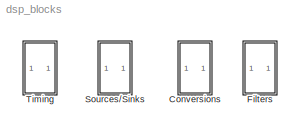
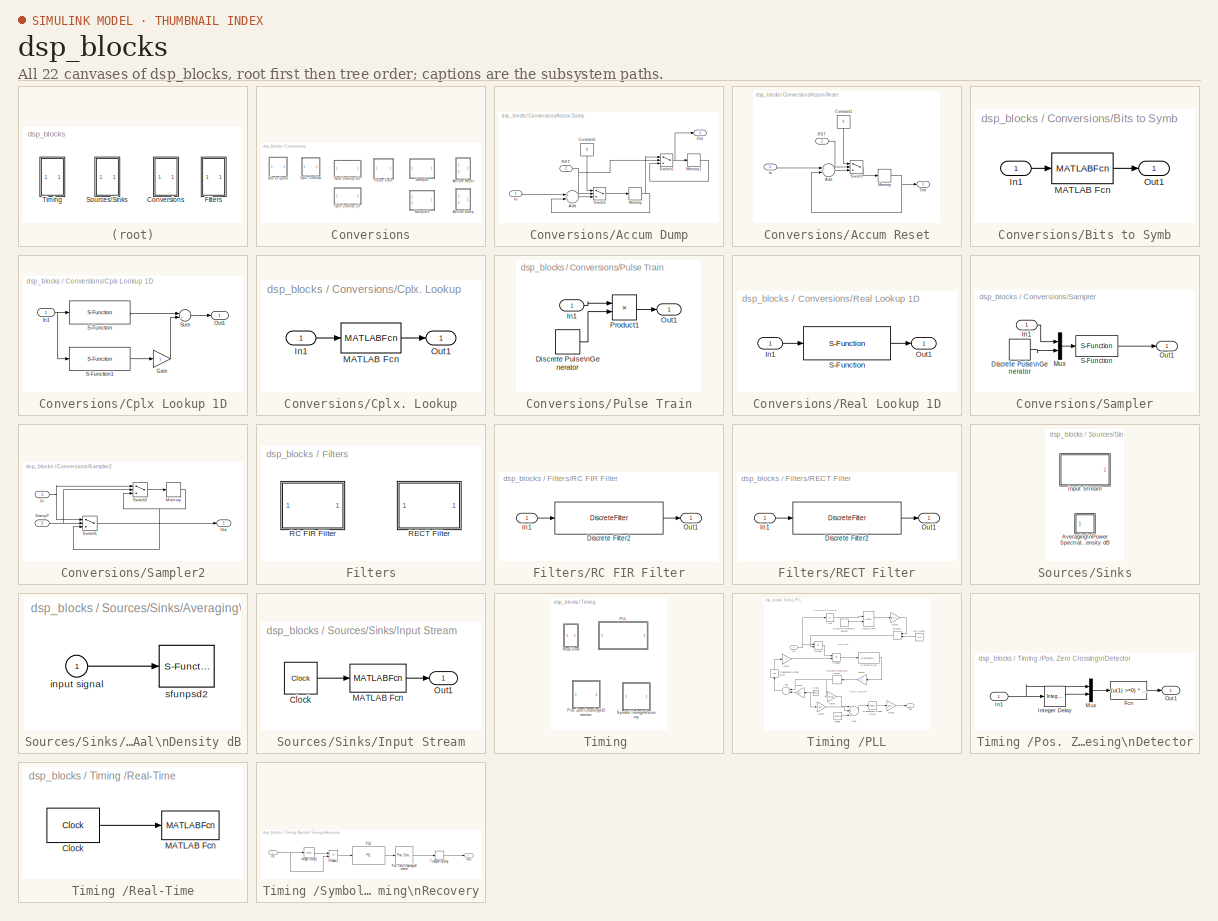
[diagram: thumbnail index - all 22 canvases of the model, root first then tree order]
MODEL dsp_blocks
KIND library
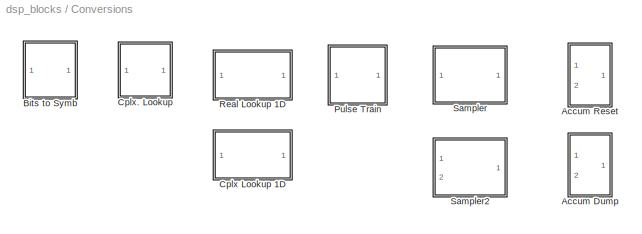
BLOCK [SubSystem] Conversions
  MaskHideContents = off
  MinAlgLoopOccurrences = off
  Ports = []
  RTWSystemCode = Auto
  TreatAsAtomicUnit = off
BLOCK [SubSystem] Conversions/Accum Dump
  MaskDescription = Accumulate and dump operation.
  MaskEnableString = on
  MaskHideContents = off
  MaskIconFrame = on
  MaskIconOpaque = on
  MaskIconRotate = none
  MaskIconUnits = autoscale
  MaskPromptString = Initial Condition
  MaskStyleString = edit
  MaskToolTipString = on
  MaskTunableValueString = on
  MaskValueString = 0
  MaskVariables = val0=@1;
  MaskVisibilityString = on
  MinAlgLoopOccurrences = off
  Ports = [2, 1]
  RTWSystemCode = Auto
  TreatAsAtomicUnit = off
BLOCK [Sum] Conversions/Accum Dump/Add
  InputSameDT = off
  OutDataTypeMode = Inherit via internal rule
  OutScaling = 2^-10
  Ports = [2, 1]
  SaturateOnIntegerOverflow = off
BLOCK [Constant] Conversions/Accum Dump/Constant1
  Value = 0
BLOCK [Inport] Conversions/Accum Dump/In
  IconDisplay = Port number
BLOCK [Memory] Conversions/Accum Dump/Memory
  X0 = val0
BLOCK [Memory] Conversions/Accum Dump/Memory1
  X0 = val0
BLOCK [Outport] Conversions/Accum Dump/Out
  BusOutputAsStruct = off
  IconDisplay = Port number
BLOCK [Inport] Conversions/Accum Dump/RST
  IconDisplay = Port number
  Port = 2
BLOCK [Switch] Conversions/Accum Dump/Switch
  InputSameDT = off
  SaturateOnIntegerOverflow = off
  Threshold = 0.5
BLOCK [Switch] Conversions/Accum Dump/Switch1
  InputSameDT = off
  SaturateOnIntegerOverflow = off
  Threshold = 0.5
BLOCK [SubSystem] Conversions/Accum Reset
  MaskDescription = Accumulator that can be reset.
  MaskHideContents = off
  MaskIconFrame = on
  MaskIconOpaque = on
  MaskIconRotate = none
  MaskIconUnits = autoscale
  MinAlgLoopOccurrences = off
  Ports = [2, 1]
  RTWSystemCode = Auto
  TreatAsAtomicUnit = off
BLOCK [Sum] Conversions/Accum Reset/Add
  InputSameDT = off
  OutDataTypeMode = Inherit via internal rule
  OutScaling = 2^-10
  Ports = [2, 1]
  SaturateOnIntegerOverflow = off
BLOCK [Constant] Conversions/Accum Reset/Constant1
  Value = 0
BLOCK [Inport] Conversions/Accum Reset/In
  IconDisplay = Port number
BLOCK [Memory] Conversions/Accum Reset/Memory
BLOCK [Outport] Conversions/Accum Reset/Out
  BusOutputAsStruct = off
  IconDisplay = Port number
BLOCK [Inport] Conversions/Accum Reset/RST
  IconDisplay = Port number
  Port = 2
BLOCK [Switch] Conversions/Accum Reset/Switch
  InputSameDT = off
  SaturateOnIntegerOverflow = off
  Threshold = 0.5
BLOCK [SubSystem] Conversions/Bits to Symb
  MaskDescription = Converts bits to symbols.
  MaskHideContents = off
  MaskIconFrame = on
  MaskIconOpaque = on
  MaskIconRotate = none
  MaskIconUnits = autoscale
  MinAlgLoopOccurrences = off
  Ports = [1, 1]
  RTWSystemCode = Auto
  TreatAsAtomicUnit = off
BLOCK [Inport] Conversions/Bits to Symb/In1
  IconDisplay = Port number
BLOCK [MATLABFcn] Conversions/Bits to Symb/MATLAB Fcn
  MATLABFcn = bits_to_symb_do(u)
  OutputDimensions = 1
BLOCK [Outport] Conversions/Bits to Symb/Out1
  BusOutputAsStruct = off
  IconDisplay = Port number
BLOCK [SubSystem] Conversions/Cplx Lookup 1D
  MaskEnableString = on
  MaskHideContents = off
  MaskIconFrame = on
  MaskIconOpaque = on
  MaskIconRotate = none
  MaskIconUnits = autoscale
  MaskInitialization = XData = [0:length(table)-1]; YDataRe = real(table); YDataIm = imag(table); XDataEvenlySpacing=1;
  MaskPromptString = Table
  MaskStyleString = edit
  MaskToolTipString = on
  MaskTunableValueString = on
  MaskValueString = [j -j]
  MaskVariables = table=@1;
  MaskVisibilityString = on
  MinAlgLoopOccurrences = off
  Ports = [1, 1]
  RTWSystemCode = Auto
  TreatAsAtomicUnit = off
BLOCK [Gain] Conversions/Cplx Lookup 1D/Gain
  Gain = j
BLOCK [Inport] Conversions/Cplx Lookup 1D/In1
  IconDisplay = Port number
BLOCK [Outport] Conversions/Cplx Lookup 1D/Out1
  BusOutputAsStruct = off
  IconDisplay = Port number
BLOCK [S-Function] Conversions/Cplx Lookup 1D/S-Function
  FunctionName = sfun_directlook
  Parameters = XData, YDataRe, XDataEvenlySpacing
  Ports = [1, 1]
BLOCK [S-Function] Conversions/Cplx Lookup 1D/S-Function1
  FunctionName = sfun_directlook
  Parameters = XData, YDataIm, XDataEvenlySpacing
  Ports = [1, 1]
BLOCK [Sum] Conversions/Cplx Lookup 1D/Sum
  IconShape = round
  Inputs = |++
  Ports = [2, 1]
BLOCK [SubSystem] Conversions/Cplx. Lookup
  MaskDescription = Does a discrete lookup table.
  MaskEnableString = on
  MaskHelp = The table variable has one entry per possible input index.  Note that it is defined to be zero indexed (0 maps to the first table entry, 1 to the second, etc.).\n
  MaskHideContents = off
  MaskIconFrame = on
  MaskIconOpaque = on
  MaskIconRotate = none
  MaskIconUnits = autoscale
  MaskPromptString = Table
  MaskStyleString = edit
  MaskToolTipString = on
  MaskTunableValueString = on
  MaskValueString = [-1 1]
  MaskVariables = table=@1;
  MaskVisibilityString = on
  MinAlgLoopOccurrences = off
  Ports = [1, 1]
  RTWSystemCode = Auto
  TreatAsAtomicUnit = off
BLOCK [Inport] Conversions/Cplx. Lookup/In1
  IconDisplay = Port number
BLOCK [MATLABFcn] Conversions/Cplx. Lookup/MATLAB Fcn
  MATLABFcn = lookup_do(u, table)
  OutputSignalType = complex
BLOCK [Outport] Conversions/Cplx. Lookup/Out1
  BusOutputAsStruct = off
  IconDisplay = Port number
BLOCK [SubSystem] Conversions/Pulse Train
  MaskDescription = Samples the incoming signal and makes a pulse train.
  MaskDisplay = disp(sprintf('T=%d', period));
  MaskEnableString = on
  MaskHideContents = off
  MaskIconFrame = on
  MaskIconOpaque = on
  MaskIconRotate = none
  MaskIconUnits = autoscale
  MaskPromptString = Period (samples)
  MaskStyleString = edit
  MaskToolTipString = on
  MaskTunableValueString = on
  MaskValueString = 10
  MaskVariables = period=@1;
  MaskVisibilityString = on
  MinAlgLoopOccurrences = off
  Ports = [1, 1]
  RTWSystemCode = Auto
  TreatAsAtomicUnit = off
BLOCK [DiscretePulseGenerator] Conversions/Pulse Train/Discrete Pulse\nGenerator
  Period = period
  Ports = [0, 1]
BLOCK [Inport] Conversions/Pulse Train/In1
  IconDisplay = Port number
BLOCK [Outport] Conversions/Pulse Train/Out1
  BusOutputAsStruct = off
  IconDisplay = Port number
BLOCK [Product] Conversions/Pulse Train/Product1
  InputSameDT = off
  Ports = [2, 1]
BLOCK [SubSystem] Conversions/Real Lookup 1D
  MaskEnableString = on
  MaskHideContents = off
  MaskIconFrame = on
  MaskIconOpaque = on
  MaskIconRotate = none
  MaskIconUnits = autoscale
  MaskInitialization = XData = [0:length(table)-1]; YData = table; XDataEvenlySpacing=1;
  MaskPromptString = Table
  MaskStyleString = edit
  MaskToolTipString = on
  MaskTunableValueString = on
  MaskValueString = [-1 -0.5 0.5 1]
  MaskVariables = table=@1;
  MaskVisibilityString = on
  MinAlgLoopOccurrences = off
  Ports = [1, 1]
  RTWSystemCode = Auto
  TreatAsAtomicUnit = off
BLOCK [Inport] Conversions/Real Lookup 1D/In1
  IconDisplay = Port number
BLOCK [Outport] Conversions/Real Lookup 1D/Out1
  BusOutputAsStruct = off
  IconDisplay = Port number
BLOCK [S-Function] Conversions/Real Lookup 1D/S-Function
  FunctionName = sfun_directlook
  Parameters = XData, YData, XDataEvenlySpacing
  Ports = [1, 1]
BLOCK [SubSystem] Conversions/Sampler
  MaskCallbackString = |
  MaskDisplay = disp(sprintf('del=%d, T=%d', offset, samp_period));
  MaskEnableString = on,on
  MaskHideContents = off
  MaskIconFrame = on
  MaskIconOpaque = on
  MaskIconRotate = none
  MaskIconUnits = autoscale
  MaskPromptString = Offset (samples)|Sample Period
  MaskStyleString = edit,edit
  MaskTabNameString = ,
  MaskToolTipString = on,on
  MaskTunableValueString = on,on
  MaskValueString = 64|10
  MaskVarAliasString = ,
  MaskVariables = offset=@1;samp_period=@2;
  MaskVisibilityString = on,on
  MinAlgLoopOccurrences = off
  Ports = [1, 1]
  RTWSystemCode = Auto
  TreatAsAtomicUnit = off
BLOCK [DiscretePulseGenerator] Conversions/Sampler/Discrete Pulse\nGenerator
  Period = samp_period
  PhaseDelay = offset
  Ports = [0, 1]
BLOCK [Inport] Conversions/Sampler/In1
  IconDisplay = Port number
BLOCK [Mux] Conversions/Sampler/Mux
  DisplayOption = bar
  Inputs = 2
  Ports = [2, 1]
BLOCK [Outport] Conversions/Sampler/Out1
  BusOutputAsStruct = off
  IconDisplay = Port number
BLOCK [S-Function] Conversions/Sampler/S-Function
  FunctionName = sampler1
  Ports = [1, 1]
BLOCK [SubSystem] Conversions/Sampler2
  MaskDescription = Sample and hold with external gate signal.
  MaskHideContents = off
  MaskIconFrame = on
  MaskIconOpaque = on
  MaskIconRotate = none
  MaskIconUnits = autoscale
  MinAlgLoopOccurrences = off
  Ports = [2, 1]
  RTWSystemCode = Auto
  TreatAsAtomicUnit = off
BLOCK [Inport] Conversions/Sampler2/In
  IconDisplay = Port number
BLOCK [Memory] Conversions/Sampler2/Memory
BLOCK [Outport] Conversions/Sampler2/Out
  BusOutputAsStruct = off
  IconDisplay = Port number
BLOCK [Inport] Conversions/Sampler2/Samp?
  IconDisplay = Port number
  Port = 2
BLOCK [Switch] Conversions/Sampler2/Switch1
  InputSameDT = off
  SaturateOnIntegerOverflow = off
  Threshold = 0.5
BLOCK [Switch] Conversions/Sampler2/Switch2
  InputSameDT = off
  SaturateOnIntegerOverflow = off
  Threshold = 0.5
BLOCK [SubSystem] Filters
  MaskHideContents = off
  MinAlgLoopOccurrences = off
  Ports = []
  RTWSystemCode = Auto
  TreatAsAtomicUnit = off
BLOCK [SubSystem] Filters/RC FIR Filter
  MaskCallbackString = ||||
  MaskDisplay = plot(f, abs(Ha));
  MaskEnableString = on,on,on,on,on
  MaskHideContents = off
  MaskIconFrame = on
  MaskIconOpaque = on
  MaskIconRotate = none
  MaskIconUnits = autoscale
  MaskInitialization = symb_rate = 1/period; p.fs = symb_rate; p.beta = beta; p.root = root; [h f Ha Hi win] = win_method('rc_filt', p, 1.5*(1+beta)*symb_rate, 1, filt_len, win_type); h = h';
  MaskPromptString = Symbol Period|Roll Off (beta)|Root Filter?|Filter Length (taps)|Hamming Window?
  MaskStyleString = edit,edit,checkbox,edit,checkbox
  MaskTabNameString = ,,,,
  MaskToolTipString = on,on,on,on,on
  MaskTunableValueString = on,on,on,on,on
  MaskValueString = 10|0.5|off|128|off
  MaskVarAliasString = ,,,,
  MaskVariables = period=@1;beta=@2;root=@3;filt_len=@4;win_type=@5;
  MaskVisibilityString = on,on,on,on,on
  MinAlgLoopOccurrences = off
  Ports = [1, 1]
  RTWSystemCode = Auto
  TreatAsAtomicUnit = off
BLOCK [DiscreteFilter] Filters/RC FIR Filter/Discrete Filter2
  Denominator = [1]
  Numerator = h
BLOCK [Inport] Filters/RC FIR Filter/In1
  IconDisplay = Port number
BLOCK [Outport] Filters/RC FIR Filter/Out1
  BusOutputAsStruct = off
  IconDisplay = Port number
BLOCK [SubSystem] Filters/RECT Filter
  AncestorBlock = dsp_blocks/Filters/RC FIR Filter
  MaskCallbackString = ||
  MaskDisplay = plot(f, abs(Ha));
  MaskEnableString = on,on,on
  MaskHideContents = off
  MaskIconFrame = on
  MaskIconOpaque = on
  MaskIconRotate = none
  MaskIconUnits = autoscale
  MaskInitialization = p.x1 = f0; p.x2 = f0; p.x3 = f1; p.x4 = f1; [h f Ha Hi win] = win_method('pw_lin', p, 0.5, 1, filt_len, 1); h = h';
  MaskPromptString = Low Cutoff (0=LPF)|Hi Cutoff|Filter Length (taps)
  MaskStyleString = edit,edit,edit
  MaskTabNameString = ,,
  MaskToolTipString = on,on,on
  MaskTunableValueString = on,on,on
  MaskValueString = 0.1|0.2|64
  MaskVarAliasString = ,,
  MaskVariables = f0=@1;f1=@2;filt_len=@3;
  MaskVisibilityString = on,on,on
  MinAlgLoopOccurrences = off
  Ports = [1, 1]
  RTWSystemCode = Auto
  TreatAsAtomicUnit = off
BLOCK [DiscreteFilter] Filters/RECT Filter/Discrete Filter2
  Denominator = [1]
  Numerator = h
BLOCK [Inport] Filters/RECT Filter/In1
  IconDisplay = Port number
BLOCK [Outport] Filters/RECT Filter/Out1
  BusOutputAsStruct = off
  IconDisplay = Port number
BLOCK [SubSystem] Sources//Sinks
  MaskHideContents = off
  MinAlgLoopOccurrences = off
  Ports = []
  RTWSystemCode = Auto
  TreatAsAtomicUnit = off
BLOCK [SubSystem] Sources//Sinks/Averaging\nPower Spectral\nDensity dB
  CopyFcn = sfunpsd2([],[],[],'CopyBlock')
  DeleteFcn = sfunpsd2([],[],[],'DeleteBlock')
  LoadFcn = sfunpsd2([],[],[],'LoadBlock')
  MaskCallbackString = ||||
  MaskDescription = Spectrum analyzer using graph window.
  MaskDisplay = plot(0,0,100,100,[11,92,92,11,11],[90,90,40,40,90],[82,76,65,57,51,44,35,30,25,20],[65,62,59,63,66,66,67,70,55,50])
  MaskEnableString = on,on,on,on,on
  MaskHelp = This block when hooked to the output of a system displays the frequency content of the buffer in the graph window. For more see the M-file sfunpsd.
  MaskHideContents = off
  MaskIconFrame = on
  MaskIconOpaque = on
  MaskIconRotate = none
  MaskIconUnits = autoscale
  MaskInitialization = ts=sampleT(1); if length(sampleT) > 1, offset = sampleT(2);, else, offset = 0; end
  MaskPromptString = Length of buffer:|Number of points for fft:|Plot after how many points:|Sample time:|dB Range:
  MaskSelfModifiable = on
  MaskStyleString = edit,edit,edit,edit,edit
  MaskTabNameString = ,,,,
  MaskToolTipString = on,on,on,on,on
  MaskTunableValueString = on,on,on,on,on
  MaskType = Spectrum Analyzer
  MaskValueString = 128|512|64|1|20
  MaskVarAliasString = ,,,,
  MaskVariables = npts=@1;fftpts=@2;HowOften=@3;sampleT=@4;db_range=@5;
  MaskVisibilityString = on,on,on,on,on
  MinAlgLoopOccurrences = off
  NameChangeFcn = sfunpsd2([],[],[],'NameChange')
  Ports = [1]
  RTWSystemCode = Auto
  StartFcn = sfunpsd2([],[],[],'Start')
  TreatAsAtomicUnit = off
BLOCK [Inport] Sources//Sinks/Averaging\nPower Spectral\nDensity dB/input signal
  IconDisplay = Port number
BLOCK [S-Function] Sources//Sinks/Averaging\nPower Spectral\nDensity dB/sfunpsd2
  CopyFcn = sfunpsd2([],[],[],'CopyBlock')
  DeleteFcn = sfunpsd2([],[],[],'DeleteBlock')
  FunctionName = sfunpsd2
  LoadFcn = sfunpsd2([],[],[],'LoadBlock')
  NameChangeFcn = sfunpsd2([],[],[],'NameChange')
  Parameters = fftpts,npts,HowOften,offset,ts,1,db_range
  Ports = [1]
  StartFcn = sfunpsd2([],[],[],'Start')
BLOCK [SubSystem] Sources//Sinks/Input Stream
  MaskCallbackString = ||
  MaskDescription = Input Stream: Reads binary data from an input file.  Outputs a new value once per period.  Width allows you to multiplex output.
  MaskDisplay = disp(sprintf('file=%s\\nT=%g w=%d', fname, period, width))
  MaskEnableString = on,on,on
  MaskHelp = The function loads the binary data from file fname, which should have a single vector called \"data\".  The output of the block is updated once every T=width*period.
  MaskHideContents = off
  MaskIconFrame = on
  MaskIconOpaque = on
  MaskIconRotate = none
  MaskIconUnits = autoscale
  MaskInitialization = load(fname); N = floor(length(data)/width); data = reshape(data(1:N*width),width,N);
  MaskPromptString = Period|Width|Data Filename
  MaskStyleString = edit,edit,edit
  MaskTabNameString = ,,
  MaskToolTipString = on,on,on
  MaskTunableValueString = on,on,on
  MaskValueString = 10|1|data.mat
  MaskVarAliasString = ,,
  MaskVariables = period=@1;width=@2;fname=&3;
  MaskVisibilityString = on,on,on
  MinAlgLoopOccurrences = off
  Ports = [0, 1]
  RTWSystemCode = Auto
  TreatAsAtomicUnit = off
BLOCK [Clock] Sources//Sinks/Input Stream/Clock
  Decimation = 1
  DisplayTime = on
BLOCK [MATLABFcn] Sources//Sinks/Input Stream/MATLAB Fcn
  MATLABFcn = input_stream_sample(u, data, period, width)
  Output1D = off
  OutputDimensions = width
BLOCK [Outport] Sources//Sinks/Input Stream/Out1
  BusOutputAsStruct = off
  IconDisplay = Port number
BLOCK [SubSystem] Timing 
  MaskHideContents = off
  MinAlgLoopOccurrences = off
  Ports = []
  RTWSystemCode = Auto
  TreatAsAtomicUnit = off
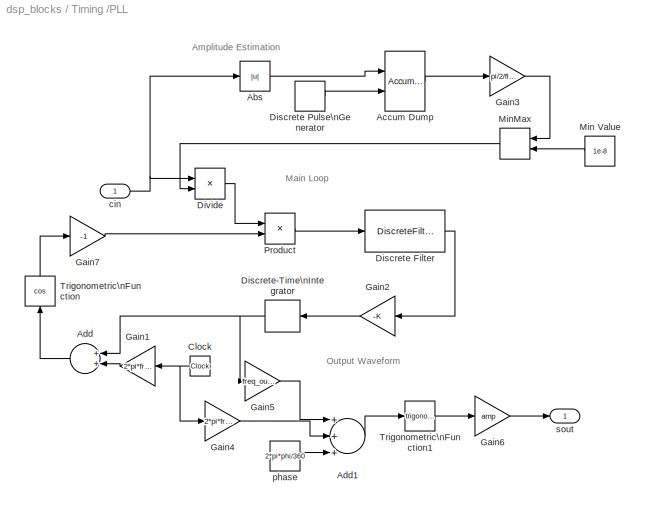
BLOCK [SubSystem] Timing /PLL
  MaskCallbackString = ||||||
  MaskDescription = Implements a phase locked loop (PLL).
  MaskDisplay = disp(sprintf('fin=%g fout=%g\\nxi=%g Tl=%g\\nphi=%g  amp=%g',freq,freq_out,xi,T,phi,amp));
  MaskEnableString = on,on,on,on,on,on,on
  MaskHideContents = off
  MaskIconFrame = on
  MaskIconOpaque = on
  MaskIconRotate = none
  MaskIconUnits = autoscale
  MaskInitialization = [a, b, tau1, tau2, Kout] = loop_filter1(T, xi, K);
  MaskPromptString = Input Frequency|Output Frequency|Output Phase|Output Amplitude|Damping Factor|Loop Gain|Loop Time Constant (samples)
  MaskStyleString = edit,edit,edit,edit,edit,edit,edit
  MaskTabNameString = ,,,,,,
  MaskToolTipString = on,on,on,on,on,on,on
  MaskTunableValueString = on,on,on,on,on,on,on
  MaskValueString = 0.1|0.1|0|1|1|2|200
  MaskVarAliasString = ,,,,,,
  MaskVariables = freq=@1;freq_out=@2;phi=@3;amp=@4;xi=@5;K=@6;T=@7;
  MaskVisibilityString = on,on,on,on,on,on,on
  MinAlgLoopOccurrences = off
  Ports = [1, 1]
  RTWSystemCode = Auto
  TreatAsAtomicUnit = off
BLOCK [Abs] Timing /PLL/Abs
  SaturateOnIntegerOverflow = off
BLOCK [Reference] Timing /PLL/Accum Dump  REF=dsp_blocks/Conversions/Accum Dump
  Ports = [2, 1]
  ShowPortLabels = on
  SourceBlock = dsp_blocks/Conversions/Accum Dump
  SourceType = Unknown
  val0 = 2/pi*floor(T)
BLOCK [Sum] Timing /PLL/Add
  InputSameDT = off
  OutDataTypeMode = Inherit via internal rule
  OutScaling = 2^-10
  Ports = [2, 1]
  SaturateOnIntegerOverflow = off
BLOCK [Sum] Timing /PLL/Add1
  InputSameDT = off
  Inputs = +++
  OutDataTypeMode = Inherit via internal rule
  OutScaling = 2^-10
  Ports = [3, 1]
  SaturateOnIntegerOverflow = off
BLOCK [Clock] Timing /PLL/Clock
  Decimation = 1
BLOCK [DiscreteFilter] Timing /PLL/Discrete Filter
  Denominator = [1 -a(1)]
  Numerator = [b(1) b(2)]
BLOCK [DiscretePulseGenerator] Timing /PLL/Discrete Pulse\nGenerator
  Period = floor(T)
  Ports = [0, 1]
BLOCK [DiscreteIntegrator] Timing /PLL/Discrete-Time\nIntegrator
  ExternalReset = none
  ICPrevOutput = DiscIntNeverNeededParam
  ICPrevScaledInput = DiscIntNeverNeededParam
  IgnoreLimit = off
  InitialConditionSource = internal
  IntegratorMethod = Integration: Forward Euler
  Ports = [1, 1]
  gainval = 1
BLOCK [Product] Timing /PLL/Divide
  InputSameDT = off
  Inputs = */
  OutDataTypeMode = Inherit via internal rule
  OutScaling = 2^-10
  Ports = [2, 1]
  RndMeth = Floor
  SaturateOnIntegerOverflow = off
BLOCK [Gain] Timing /PLL/Gain1
  Gain = 2*pi*freq
  OutDataTypeMode = Inherit via internal rule
  ParameterDataTypeMode = Inherit via internal rule
  SaturateOnIntegerOverflow = off
BLOCK [Gain] Timing /PLL/Gain2
  Gain = -K
  OutDataTypeMode = Inherit via internal rule
  ParameterDataTypeMode = Inherit via internal rule
  SaturateOnIntegerOverflow = off
BLOCK [Gain] Timing /PLL/Gain3
  Gain = pi/2/floor(T)
  OutDataTypeMode = Inherit via internal rule
  ParameterDataTypeMode = Inherit via internal rule
  SaturateOnIntegerOverflow = off
BLOCK [Gain] Timing /PLL/Gain4
  Gain = 2*pi*freq_out
  OutDataTypeMode = Inherit via internal rule
  ParameterDataTypeMode = Inherit via internal rule
  SaturateOnIntegerOverflow = off
BLOCK [Gain] Timing /PLL/Gain5
  Gain = freq_out/freq
  OutDataTypeMode = Inherit via internal rule
  ParameterDataTypeMode = Inherit via internal rule
  SaturateOnIntegerOverflow = off
BLOCK [Gain] Timing /PLL/Gain6
  Gain = amp
  OutDataTypeMode = Inherit via internal rule
  ParameterDataTypeMode = Inherit via internal rule
  SaturateOnIntegerOverflow = off
BLOCK [Gain] Timing /PLL/Gain7
  Gain = -1
  OutDataTypeMode = Inherit via internal rule
  ParameterDataTypeMode = Inherit via internal rule
  SaturateOnIntegerOverflow = off
BLOCK [Constant] Timing /PLL/Min Value
  Value = 1e-8
BLOCK [MinMax] Timing /PLL/MinMax
  Function = max
  InputSameDT = off
  Inputs = 2
  Ports = [2, 1]
  SaturateOnIntegerOverflow = off
BLOCK [Product] Timing /PLL/Product
  InputSameDT = off
  OutDataTypeMode = Inherit via internal rule
  Ports = [2, 1]
  SaturateOnIntegerOverflow = off
BLOCK [Trigonometry] Timing /PLL/Trigonometric\nFunction
  Operator = cos
  Ports = [1, 1]
BLOCK [Trigonometry] Timing /PLL/Trigonometric\nFunction1
  Ports = [1, 1]
BLOCK [Inport] Timing /PLL/cin
  IconDisplay = Port number
BLOCK [Constant] Timing /PLL/phase
  Value = 2*pi*phi/360
BLOCK [Outport] Timing /PLL/sout
  BusOutputAsStruct = off
  IconDisplay = Port number
BLOCK [SubSystem] Timing /Pos. Zero Crossing\nDetector
  MaskDescription = Detects a positive slope zero crossing.
  MaskHideContents = off
  MaskIconFrame = on
  MaskIconOpaque = on
  MaskIconRotate = none
  MaskIconUnits = autoscale
  MinAlgLoopOccurrences = off
  Ports = [1, 1]
  RTWSystemCode = Auto
  TreatAsAtomicUnit = off
BLOCK [Fcn] Timing /Pos. Zero Crossing\nDetector/Fcn
  Expr = (u(1) >=0) * (u(2) < 0)
BLOCK [Inport] Timing /Pos. Zero Crossing\nDetector/In1
  IconDisplay = Port number
BLOCK [Reference] Timing /Pos. Zero Crossing\nDetector/Integer Delay  REF=simulink/Discrete/Integer Delay
  NumDelays = 1
  Ports = [1, 1]
  SourceBlock = simulink/Discrete/Integer Delay
  SourceType = Integer Delay
  samptime = 1
  vinit = 0.0
BLOCK [Mux] Timing /Pos. Zero Crossing\nDetector/Mux
  DisplayOption = bar
  Inputs = 2
  Ports = [2, 1]
BLOCK [Outport] Timing /Pos. Zero Crossing\nDetector/Out1
  BusOutputAsStruct = off
  IconDisplay = Port number
BLOCK [SubSystem] Timing /Real-Time
  MaskDescription = This block slows down a simulation so sample time is some fraction of the real time.
  MaskDisplay = disp('RT');
  MaskEnableString = on
  MaskHideContents = off
  MaskIconFrame = on
  MaskIconOpaque = on
  MaskIconRotate = none
  MaskIconUnits = autoscale
  MaskPromptString = Scale Factor
  MaskStyleString = edit
  MaskToolTipString = on
  MaskTunableValueString = on
  MaskValueString = 1
  MaskVariables = scale=@1;
  MaskVisibilityString = on
  MinAlgLoopOccurrences = off
  Ports = []
  RTWSystemCode = Auto
  TreatAsAtomicUnit = off
BLOCK [Clock] Timing /Real-Time/Clock
  Decimation = 1
  DisplayTime = on
BLOCK [MATLABFcn] Timing /Real-Time/MATLAB Fcn
  Description = do_wait
  MATLABFcn = do_wait(u, scale)
  OutputDimensions = 0
BLOCK [SubSystem] Timing /Symbol Timing\nRecovery
  MaskCallbackString = ||
  MaskDescription = Symbol Timing Recovery Block
  MaskDisplay = disp(sprintf('T=%g\\nTl=%g\\ntadj=%g\\n', T, Tl,tadj));
  MaskEnableString = on,on,on
  MaskHideContents = off
  MaskIconFrame = on
  MaskIconOpaque = on
  MaskIconRotate = none
  MaskIconUnits = autoscale
  MaskInitialization = if (tadj < 0), final_delay=T+tadj; else final_delay=tadj; end
  MaskPromptString = Symbol Period|PLL Time Constant (samples)|Timing Adjust
  MaskStyleString = edit,edit,edit
  MaskTabNameString = ,,
  MaskToolTipString = on,on,on
  MaskTunableValueString = on,on,on
  MaskValueString = 50|1000|0
  MaskVarAliasString = ,,
  MaskVariables = T=@1;Tl=@2;tadj=@3;
  MaskVisibilityString = on,on,on
  MinAlgLoopOccurrences = off
  Ports = [1, 1]
  RTWSystemCode = Auto
  TreatAsAtomicUnit = off
BLOCK [Inport] Timing /Symbol Timing\nRecovery/In1
  IconDisplay = Port number
BLOCK [Reference] Timing /Symbol Timing\nRecovery/Integer Delay1  REF=simulink/Discrete/Integer Delay
  NumDelays = round(T/2)
  Ports = [1, 1]
  SourceBlock = simulink/Discrete/Integer Delay
  SourceType = Integer Delay
  samptime = -1
  vinit = 0.0
BLOCK [Outport] Timing /Symbol Timing\nRecovery/Out1
  BusOutputAsStruct = off
  IconDisplay = Port number
BLOCK [Reference] Timing /Symbol Timing\nRecovery/PLL1  REF=dsp_blocks/Timing /PLL
  K = 2
  Ports = [1, 1]
  ShowPortLabels = on
  SourceBlock = dsp_blocks/Timing /PLL
  SourceType = Unknown
  T = Tl
  amp = 1
  freq = 1/T
  freq_out = 1/T
  phi = 0
  xi = 1
BLOCK [Reference] Timing /Symbol Timing\nRecovery/Pos. Zero Crossing\nDetector  REF=dsp_blocks/Timing /Pos. Zero Crossing\nDetector
  Ports = [1, 1]
  ShowPortLabels = on
  SourceBlock = dsp_blocks/Timing /Pos. Zero Crossing\nDetector
  SourceType = Unknown
BLOCK [Product] Timing /Symbol Timing\nRecovery/Product1
  InputSameDT = off
  OutDataTypeMode = Inherit via internal rule
  Ports = [2, 1]
  SaturateOnIntegerOverflow = off
BLOCK [TransportDelay] Timing /Symbol Timing\nRecovery/Transport\nDelay
  DelayTime = final_delay
ANNOTATION Timing /PLL: Amplitude Estimation
ANNOTATION Timing /PLL: Main Loop
ANNOTATION Timing /PLL: Output Waveform
LINE Conversions/Accum Dump/Add:1 -> Conversions/Accum Dump/Switch:3
LINE Conversions/Accum Dump/Constant1:1 -> Conversions/Accum Dump/Switch:1
LINE Conversions/Accum Dump/In:1 -> Conversions/Accum Dump/Add:1
LINE Conversions/Accum Dump/Memory1:1 -> Conversions/Accum Dump/Switch1:3
NET Conversions/Accum Dump/Memory:1 -> Conversions/Accum Dump/Add:2, Conversions/Accum Dump/Switch1:1
NET Conversions/Accum Dump/RST:1 -> Conversions/Accum Dump/Switch1:2, Conversions/Accum Dump/Switch:2
NET Conversions/Accum Dump/Switch1:1 -> Conversions/Accum Dump/Memory1:1, Conversions/Accum Dump/Out:1
LINE Conversions/Accum Dump/Switch:1 -> Conversions/Accum Dump/Memory:1
LINE Conversions/Accum Reset/Add:1 -> Conversions/Accum Reset/Switch:3
LINE Conversions/Accum Reset/Constant1:1 -> Conversions/Accum Reset/Switch:1
LINE Conversions/Accum Reset/In:1 -> Conversions/Accum Reset/Add:1
NET Conversions/Accum Reset/Memory:1 -> Conversions/Accum Reset/Add:2, Conversions/Accum Reset/Out:1
LINE Conversions/Accum Reset/RST:1 -> Conversions/Accum Reset/Switch:2
LINE Conversions/Accum Reset/Switch:1 -> Conversions/Accum Reset/Memory:1
LINE Conversions/Bits to Symb/In1:1 -> Conversions/Bits to Symb/MATLAB Fcn:1
LINE Conversions/Bits to Symb/MATLAB Fcn:1 -> Conversions/Bits to Symb/Out1:1
LINE Conversions/Cplx Lookup 1D/Gain:1 -> Conversions/Cplx Lookup 1D/Sum:2
NET Conversions/Cplx Lookup 1D/In1:1 -> Conversions/Cplx Lookup 1D/S-Function1:1, Conversions/Cplx Lookup 1D/S-Function:1
LINE Conversions/Cplx Lookup 1D/S-Function1:1 -> Conversions/Cplx Lookup 1D/Gain:1
LINE Conversions/Cplx Lookup 1D/S-Function:1 -> Conversions/Cplx Lookup 1D/Sum:1
LINE Conversions/Cplx Lookup 1D/Sum:1 -> Conversions/Cplx Lookup 1D/Out1:1
LINE Conversions/Cplx. Lookup/In1:1 -> Conversions/Cplx. Lookup/MATLAB Fcn:1
LINE Conversions/Cplx. Lookup/MATLAB Fcn:1 -> Conversions/Cplx. Lookup/Out1:1
LINE Conversions/Pulse Train/Discrete Pulse\nGenerator:1 -> Conversions/Pulse Train/Product1:2
LINE Conversions/Pulse Train/In1:1 -> Conversions/Pulse Train/Product1:1
LINE Conversions/Pulse Train/Product1:1 -> Conversions/Pulse Train/Out1:1
LINE Conversions/Real Lookup 1D/In1:1 -> Conversions/Real Lookup 1D/S-Function:1
LINE Conversions/Real Lookup 1D/S-Function:1 -> Conversions/Real Lookup 1D/Out1:1
LINE Conversions/Sampler/Discrete Pulse\nGenerator:1 -> Conversions/Sampler/Mux:2
LINE Conversions/Sampler/In1:1 -> Conversions/Sampler/Mux:1
LINE Conversions/Sampler/Mux:1 -> Conversions/Sampler/S-Function:1
LINE Conversions/Sampler/S-Function:1 -> Conversions/Sampler/Out1:1
NET Conversions/Sampler2/In:1 -> Conversions/Sampler2/Switch1:1, Conversions/Sampler2/Switch2:1
NET Conversions/Sampler2/Memory:1 -> Conversions/Sampler2/Switch1:3, Conversions/Sampler2/Switch2:3
NET Conversions/Sampler2/Samp?:1 -> Conversions/Sampler2/Switch1:2, Conversions/Sampler2/Switch2:2
LINE Conversions/Sampler2/Switch1:1 -> Conversions/Sampler2/Out:1
LINE Conversions/Sampler2/Switch2:1 -> Conversions/Sampler2/Memory:1
LINE Filters/RC FIR Filter/Discrete Filter2:1 -> Filters/RC FIR Filter/Out1:1
LINE Filters/RC FIR Filter/In1:1 -> Filters/RC FIR Filter/Discrete Filter2:1
LINE Filters/RECT Filter/Discrete Filter2:1 -> Filters/RECT Filter/Out1:1
LINE Filters/RECT Filter/In1:1 -> Filters/RECT Filter/Discrete Filter2:1
LINE Sources//Sinks/Averaging\nPower Spectral\nDensity dB/input signal:1 -> Sources//Sinks/Averaging\nPower Spectral\nDensity dB/sfunpsd2:1
LINE Sources//Sinks/Input Stream/Clock:1 -> Sources//Sinks/Input Stream/MATLAB Fcn:1
LINE Sources//Sinks/Input Stream/MATLAB Fcn:1 -> Sources//Sinks/Input Stream/Out1:1
LINE Timing /PLL/Abs:1 -> Timing /PLL/Accum Dump:1
LINE Timing /PLL/Accum Dump:1 -> Timing /PLL/Gain3:1
LINE Timing /PLL/Add1:1 -> Timing /PLL/Trigonometric\nFunction1:1
LINE Timing /PLL/Add:1 -> Timing /PLL/Trigonometric\nFunction:1
NET Timing /PLL/Clock:1 -> Timing /PLL/Gain1:1, Timing /PLL/Gain4:1
LINE Timing /PLL/Discrete Filter:1 -> Timing /PLL/Gain2:1
LINE Timing /PLL/Discrete Pulse\nGenerator:1 -> Timing /PLL/Accum Dump:2
NET Timing /PLL/Discrete-Time\nIntegrator:1 -> Timing /PLL/Add:1, Timing /PLL/Gain5:1
LINE Timing /PLL/Divide:1 -> Timing /PLL/Product:1
LINE Timing /PLL/Gain1:1 -> Timing /PLL/Add:2
LINE Timing /PLL/Gain2:1 -> Timing /PLL/Discrete-Time\nIntegrator:1
LINE Timing /PLL/Gain3:1 -> Timing /PLL/MinMax:1
LINE Timing /PLL/Gain4:1 -> Timing /PLL/Add1:2
LINE Timing /PLL/Gain5:1 -> Timing /PLL/Add1:1
LINE Timing /PLL/Gain6:1 -> Timing /PLL/sout:1
LINE Timing /PLL/Gain7:1 -> Timing /PLL/Product:2
LINE Timing /PLL/Min Value:1 -> Timing /PLL/MinMax:2
LINE Timing /PLL/MinMax:1 -> Timing /PLL/Divide:2
LINE Timing /PLL/Product:1 -> Timing /PLL/Discrete Filter:1
LINE Timing /PLL/Trigonometric\nFunction1:1 -> Timing /PLL/Gain6:1
LINE Timing /PLL/Trigonometric\nFunction:1 -> Timing /PLL/Gain7:1
NET Timing /PLL/cin:1 -> Timing /PLL/Abs:1, Timing /PLL/Divide:1
LINE Timing /PLL/phase:1 -> Timing /PLL/Add1:3
LINE Timing /Pos. Zero Crossing\nDetector/Fcn:1 -> Timing /Pos. Zero Crossing\nDetector/Out1:1
NET Timing /Pos. Zero Crossing\nDetector/In1:1 -> Timing /Pos. Zero Crossing\nDetector/Integer Delay:1, Timing /Pos. Zero Crossing\nDetector/Mux:1
LINE Timing /Pos. Zero Crossing\nDetector/Integer Delay:1 -> Timing /Pos. Zero Crossing\nDetector/Mux:2
LINE Timing /Pos. Zero Crossing\nDetector/Mux:1 -> Timing /Pos. Zero Crossing\nDetector/Fcn:1
LINE Timing /Real-Time/Clock:1 -> Timing /Real-Time/MATLAB Fcn:1
NET Timing /Symbol Timing\nRecovery/In1:1 -> Timing /Symbol Timing\nRecovery/Integer Delay1:1, Timing /Symbol Timing\nRecovery/Product1:2
LINE Timing /Symbol Timing\nRecovery/Integer Delay1:1 -> Timing /Symbol Timing\nRecovery/Product1:1
LINE Timing /Symbol Timing\nRecovery/PLL1:1 -> Timing /Symbol Timing\nRecovery/Pos. Zero Crossing\nDetector:1
LINE Timing /Symbol Timing\nRecovery/Pos. Zero Crossing\nDetector:1 -> Timing /Symbol Timing\nRecovery/Transport\nDelay:1
LINE Timing /Symbol Timing\nRecovery/Product1:1 -> Timing /Symbol Timing\nRecovery/PLL1:1
LINE Timing /Symbol Timing\nRecovery/Transport\nDelay:1 -> Timing /Symbol Timing\nRecovery/Out1:1
note: NET lines group one-source signal fan-out (src -> all destinations, sorted); 1:1 wires keep LINE
